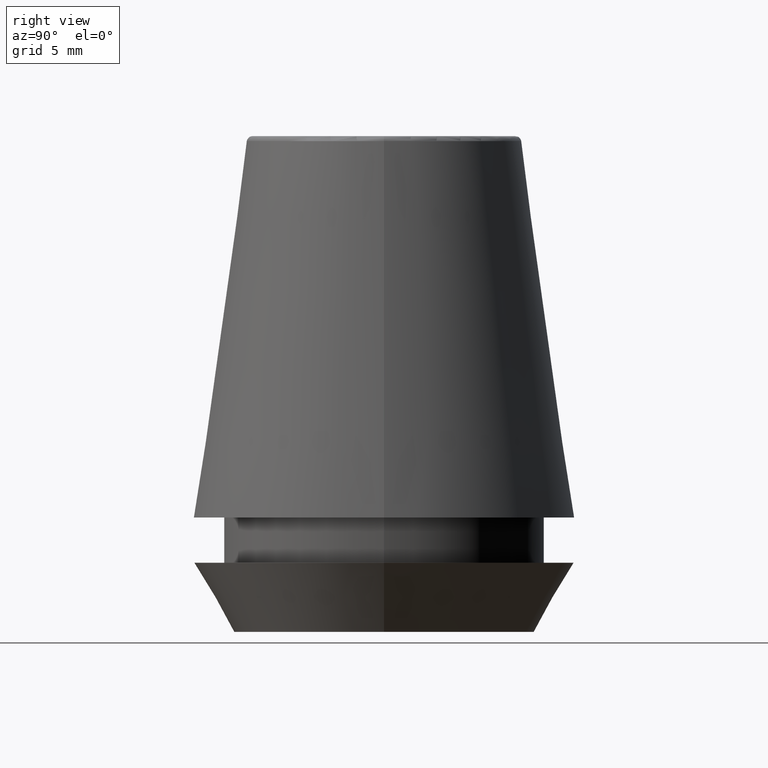
[diagram: clean part render]
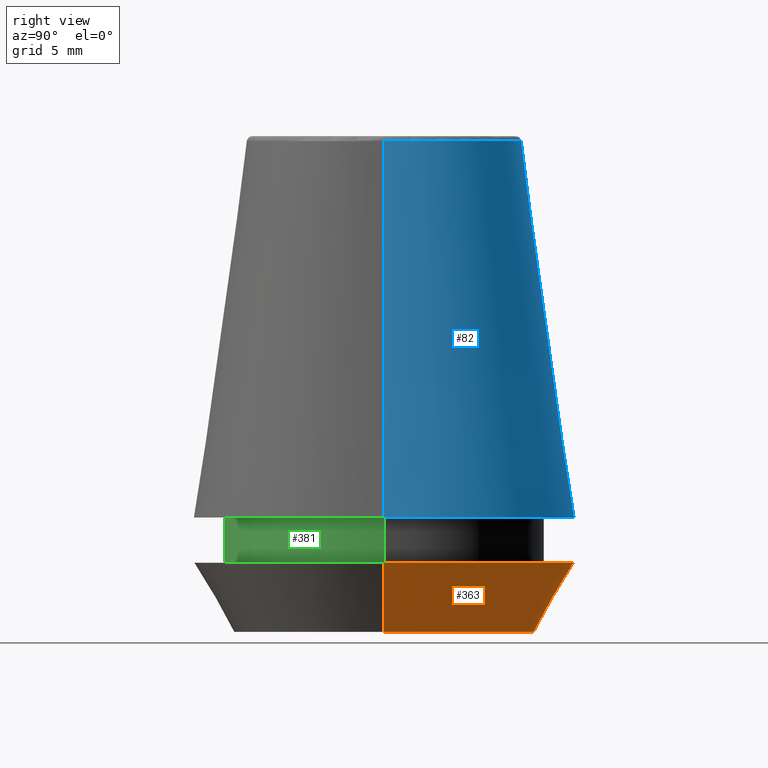
[diagram: same view with three faces highlighted in distinct colors, each labeled with its STEP entity id]
A machine part, right view with three faces highlighted in distinct colors.
Their STEP definitions:

[orange] entity #363 — the highlighted conical surface has half-angle 30 deg.
#4 = CARTESIAN_POINT ( 'NONE',  ( 0.0000000000000000000, 0.0000000000000000000, 4.742050807568884500 ) ) ;
#26 = AXIS2_PLACEMENT_3D ( 'NONE', #87, #262, #39 ) ;
#39 = DIRECTION ( 'NONE',  ( 1.000000000000000000, 0.0000000000000000000, 0.0000000000000000000 ) ) ;
#42 = EDGE_LOOP ( 'NONE', ( #319, #112, #373, #351 ) ) ;
#45 = CARTESIAN_POINT ( 'NONE',  ( 13.00000000000000000, 0.0000000000000000000, 4.742050807568884500 ) ) ;
#63 = DIRECTION ( 'NONE',  ( -0.4999999999999957800, 6.123233995736714300E-017, 0.8660254037844410400 ) ) ;
#65 = CARTESIAN_POINT ( 'NONE',  ( -10.26217568973925200, 1.256754061072695800E-015, 0.0000000000000000000 ) ) ;
#72 = DIRECTION ( 'NONE',  ( 1.000000000000000000, 0.0000000000000000000, 0.0000000000000000000 ) ) ;
#77 = FACE_OUTER_BOUND ( 'NONE', #42, .T. ) ;
#87 = CARTESIAN_POINT ( 'NONE',  ( 0.0000000000000000000, 0.0000000000000000000, 0.0000000000000000000 ) ) ;
#89 = CIRCLE ( 'NONE', #301, 13.00000000000000000 ) ;
#96 = DIRECTION ( 'NONE',  ( -0.0000000000000000000, -0.0000000000000000000, 1.000000000000000000 ) ) ;
#100 = DIRECTION ( 'NONE',  ( -0.0000000000000000000, -0.0000000000000000000, 1.000000000000000000 ) ) ;
#112 = ORIENTED_EDGE ( 'NONE', *, *, #239, .T. ) ;
#120 = LINE ( 'NONE', #65, #362 ) ;
#125 = CARTESIAN_POINT ( 'NONE',  ( -10.26217568973925200, 1.424397449982127500E-015, 0.0000000000000000000 ) ) ;
#126 = VERTEX_POINT ( 'NONE', #157 ) ;
#133 = VECTOR ( 'NONE', #174, 1000.000000000000200 ) ;
#142 = LINE ( 'NONE', #234, #133 ) ;
#151 = DIRECTION ( 'NONE',  ( 1.000000000000000000, 0.0000000000000000000, 0.0000000000000000000 ) ) ;
#156 = CIRCLE ( 'NONE', #290, 10.26217568973925200 ) ;
#157 = CARTESIAN_POINT ( 'NONE',  ( -13.00000000000000000, 1.592040838891559100E-015, 4.742050807568884500 ) ) ;
#174 = DIRECTION ( 'NONE',  ( 0.4999999999999957800, 0.0000000000000000000, 0.8660254037844410400 ) ) ;
#225 = VERTEX_POINT ( 'NONE', #125 ) ;
#234 = CARTESIAN_POINT ( 'NONE',  ( 10.26217568973925200, 0.0000000000000000000, 0.0000000000000000000 ) ) ;
#239 = EDGE_CURVE ( 'NONE', #225, #126, #120, .T. ) ;
#242 = EDGE_CURVE ( 'NONE', #300, #339, #142, .T. ) ;
#262 = DIRECTION ( 'NONE',  ( -0.0000000000000000000, -0.0000000000000000000, 1.000000000000000000 ) ) ;
#266 = EDGE_CURVE ( 'NONE', #339, #126, #89, .T. ) ;
#290 = AXIS2_PLACEMENT_3D ( 'NONE', #329, #96, #151 ) ;
#295 = CARTESIAN_POINT ( 'NONE',  ( 10.26217568973925200, 0.0000000000000000000, 0.0000000000000000000 ) ) ;
#300 = VERTEX_POINT ( 'NONE', #295 ) ;
#301 = AXIS2_PLACEMENT_3D ( 'NONE', #4, #100, #72 ) ;
#305 = EDGE_CURVE ( 'NONE', #300, #225, #156, .T. ) ;
#319 = ORIENTED_EDGE ( 'NONE', *, *, #305, .T. ) ;
#329 = CARTESIAN_POINT ( 'NONE',  ( 0.0000000000000000000, 0.0000000000000000000, 0.0000000000000000000 ) ) ;
#339 = VERTEX_POINT ( 'NONE', #45 ) ;
#351 = ORIENTED_EDGE ( 'NONE', *, *, #242, .F. ) ;
#353 = CONICAL_SURFACE ( 'NONE', #26, 10.26217568973925200, 0.5235987755982940400 ) ;
#362 = VECTOR ( 'NONE', #63, 1000.000000000000200 ) ;
#363 = ADVANCED_FACE ( 'NONE', ( #77 ), #353, .T. ) ;
#373 = ORIENTED_EDGE ( 'NONE', *, *, #266, .F. ) ;

[blue] entity #82 — the highlighted conical surface has half-angle 8 deg.
#28 = CARTESIAN_POINT ( 'NONE',  ( 0.0000000000000000000, 0.0000000000000000000, 7.842050807568876200 ) ) ;
#37 = DIRECTION ( 'NONE',  ( 0.0000000000000000000, 0.0000000000000000000, -1.000000000000000000 ) ) ;
#38 = VECTOR ( 'NONE', #47, 1000.000000000000000 ) ;
#40 = CARTESIAN_POINT ( 'NONE',  ( -9.408710285118862900, 0.0000000000000000000, 33.65566924038402900 ) ) ;
#47 = DIRECTION ( 'NONE',  ( 0.1391731009600587800, 1.704378926181474000E-017, -0.9902680687415712500 ) ) ;
#66 = LINE ( 'NONE', #269, #285 ) ;
#82 = ADVANCED_FACE ( 'NONE', ( #130 ), #224, .T. ) ;
#99 = CARTESIAN_POINT ( 'NONE',  ( 13.03657776635556700, 1.596520323340289600E-015, 7.842050807568876200 ) ) ;
#102 = DIRECTION ( 'NONE',  ( -0.0000000000000000000, -0.0000000000000000000, 1.000000000000000000 ) ) ;
#106 = CIRCLE ( 'NONE', #325, 9.408710285118862900 ) ;
#117 = VERTEX_POINT ( 'NONE', #248 ) ;
#130 = FACE_OUTER_BOUND ( 'NONE', #178, .T. ) ;
#150 = AXIS2_PLACEMENT_3D ( 'NONE', #368, #37, #308 ) ;
#167 = VERTEX_POINT ( 'NONE', #99 ) ;
#178 = EDGE_LOOP ( 'NONE', ( #187, #199, #380, #190 ) ) ;
#179 = CARTESIAN_POINT ( 'NONE',  ( -13.03657776635556700, 0.0000000000000000000, 7.842050807568876200 ) ) ;
#187 = ORIENTED_EDGE ( 'NONE', *, *, #226, .F. ) ;
#190 = ORIENTED_EDGE ( 'NONE', *, *, #245, .F. ) ;
#199 = ORIENTED_EDGE ( 'NONE', *, *, #347, .T. ) ;
#205 = DIRECTION ( 'NONE',  ( -0.0000000000000000000, -0.0000000000000000000, 1.000000000000000000 ) ) ;
#223 = LINE ( 'NONE', #286, #38 ) ;
#224 = CONICAL_SURFACE ( 'NONE', #150, 13.03657776635556700, 0.1396263401595396500 ) ;
#226 = EDGE_CURVE ( 'NONE', #117, #334, #106, .T. ) ;
#229 = EDGE_CURVE ( 'NONE', #167, #315, #367, .T. ) ;
#237 = CARTESIAN_POINT ( 'NONE',  ( 0.0000000000000000000, 0.0000000000000000000, 33.65566924038402900 ) ) ;
#245 = EDGE_CURVE ( 'NONE', #334, #315, #66, .T. ) ;
#248 = CARTESIAN_POINT ( 'NONE',  ( 9.408710285118862900, 1.374377508408924700E-015, 33.65566924038402900 ) ) ;
#254 = DIRECTION ( 'NONE',  ( 1.000000000000000000, 0.0000000000000000000, 0.0000000000000000000 ) ) ;
#269 = CARTESIAN_POINT ( 'NONE',  ( -13.03657776635556700, 0.0000000000000000000, 7.842050807568876200 ) ) ;
#285 = VECTOR ( 'NONE', #348, 1000.000000000000000 ) ;
#286 = CARTESIAN_POINT ( 'NONE',  ( 13.03657776635556700, 1.596520323340289600E-015, 7.842050807568876200 ) ) ;
#299 = DIRECTION ( 'NONE',  ( 1.000000000000000000, 0.0000000000000000000, 0.0000000000000000000 ) ) ;
#308 = DIRECTION ( 'NONE',  ( -1.000000000000000000, 0.0000000000000000000, 0.0000000000000000000 ) ) ;
#315 = VERTEX_POINT ( 'NONE', #179 ) ;
#321 = AXIS2_PLACEMENT_3D ( 'NONE', #28, #102, #254 ) ;
#325 = AXIS2_PLACEMENT_3D ( 'NONE', #237, #205, #299 ) ;
#334 = VERTEX_POINT ( 'NONE', #40 ) ;
#347 = EDGE_CURVE ( 'NONE', #117, #167, #223, .T. ) ;
#348 = DIRECTION ( 'NONE',  ( -0.1391731009600587800, 0.0000000000000000000, -0.9902680687415712500 ) ) ;
#367 = CIRCLE ( 'NONE', #321, 13.03657776635556700 ) ;
#368 = CARTESIAN_POINT ( 'NONE',  ( 0.0000000000000000000, 0.0000000000000000000, 7.842050807568876200 ) ) ;
#380 = ORIENTED_EDGE ( 'NONE', *, *, #229, .T. ) ;

[green] entity #381 — the highlighted cylindrical surface (partial cylindrical patch) has radius 11 mm, axis along (-0, -0, 1).
#36 = DIRECTION ( 'NONE',  ( -0.0000000000000000000, -0.0000000000000000000, 1.000000000000000000 ) ) ;
#49 = ORIENTED_EDGE ( 'NONE', *, *, #256, .T. ) ;
#55 = DIRECTION ( 'NONE',  ( 1.000000000000000000, 0.0000000000000000000, 0.0000000000000000000 ) ) ;
#61 = CYLINDRICAL_SURFACE ( 'NONE', #104, 11.00000000000000000 ) ;
#62 = VERTEX_POINT ( 'NONE', #252 ) ;
#78 = VECTOR ( 'NONE', #36, 1000.000000000000000 ) ;
#91 = ORIENTED_EDGE ( 'NONE', *, *, #259, .T. ) ;
#92 = VERTEX_POINT ( 'NONE', #306 ) ;
#93 = FACE_OUTER_BOUND ( 'NONE', #281, .T. ) ;
#98 = CIRCLE ( 'NONE', #310, 11.00000000000000000 ) ;
#104 = AXIS2_PLACEMENT_3D ( 'NONE', #280, #221, #121 ) ;
#121 = DIRECTION ( 'NONE',  ( 1.000000000000000000, 0.0000000000000000000, 0.0000000000000000000 ) ) ;
#127 = CARTESIAN_POINT ( 'NONE',  ( 11.00000000000000000, 0.0000000000000000000, 4.742050807568884500 ) ) ;
#138 = EDGE_CURVE ( 'NONE', #371, #92, #313, .T. ) ;
#161 = DIRECTION ( 'NONE',  ( -0.0000000000000000000, -0.0000000000000000000, 1.000000000000000000 ) ) ;
#172 = CARTESIAN_POINT ( 'NONE',  ( -11.00000000000000000, 1.347111479062088400E-015, 4.742050807568884500 ) ) ;
#196 = VERTEX_POINT ( 'NONE', #127 ) ;
#214 = VECTOR ( 'NONE', #387, 1000.000000000000000 ) ;
#221 = DIRECTION ( 'NONE',  ( -0.0000000000000000000, -0.0000000000000000000, 1.000000000000000000 ) ) ;
#230 = DIRECTION ( 'NONE',  ( -0.0000000000000000000, -0.0000000000000000000, 1.000000000000000000 ) ) ;
#236 = CIRCLE ( 'NONE', #346, 11.00000000000000000 ) ;
#252 = CARTESIAN_POINT ( 'NONE',  ( 11.00000000000000000, 0.0000000000000000000, 7.842050807568890400 ) ) ;
#256 = EDGE_CURVE ( 'NONE', #371, #196, #98, .T. ) ;
#257 = ORIENTED_EDGE ( 'NONE', *, *, #258, .F. ) ;
#258 = EDGE_CURVE ( 'NONE', #92, #62, #236, .T. ) ;
#259 = EDGE_CURVE ( 'NONE', #196, #62, #341, .T. ) ;
#267 = CARTESIAN_POINT ( 'NONE',  ( 0.0000000000000000000, 0.0000000000000000000, 7.842050807568890400 ) ) ;
#280 = CARTESIAN_POINT ( 'NONE',  ( 0.0000000000000000000, 0.0000000000000000000, 101.8074564848000400 ) ) ;
#281 = EDGE_LOOP ( 'NONE', ( #317, #49, #91, #257 ) ) ;
#306 = CARTESIAN_POINT ( 'NONE',  ( -11.00000000000000000, 1.347111479062088400E-015, 7.842050807568890400 ) ) ;
#310 = AXIS2_PLACEMENT_3D ( 'NONE', #345, #161, #384 ) ;
#313 = LINE ( 'NONE', #366, #78 ) ;
#317 = ORIENTED_EDGE ( 'NONE', *, *, #138, .F. ) ;
#341 = LINE ( 'NONE', #377, #214 ) ;
#345 = CARTESIAN_POINT ( 'NONE',  ( 0.0000000000000000000, 0.0000000000000000000, 4.742050807568884500 ) ) ;
#346 = AXIS2_PLACEMENT_3D ( 'NONE', #267, #230, #55 ) ;
#366 = CARTESIAN_POINT ( 'NONE',  ( -11.00000000000000000, 1.347111479062088400E-015, 101.8074564848000400 ) ) ;
#371 = VERTEX_POINT ( 'NONE', #172 ) ;
#377 = CARTESIAN_POINT ( 'NONE',  ( 11.00000000000000000, 0.0000000000000000000, 101.8074564848000400 ) ) ;
#381 = ADVANCED_FACE ( 'NONE', ( #93 ), #61, .T. ) ;
#384 = DIRECTION ( 'NONE',  ( 1.000000000000000000, 0.0000000000000000000, 0.0000000000000000000 ) ) ;
#387 = DIRECTION ( 'NONE',  ( -0.0000000000000000000, -0.0000000000000000000, 1.000000000000000000 ) ) ;